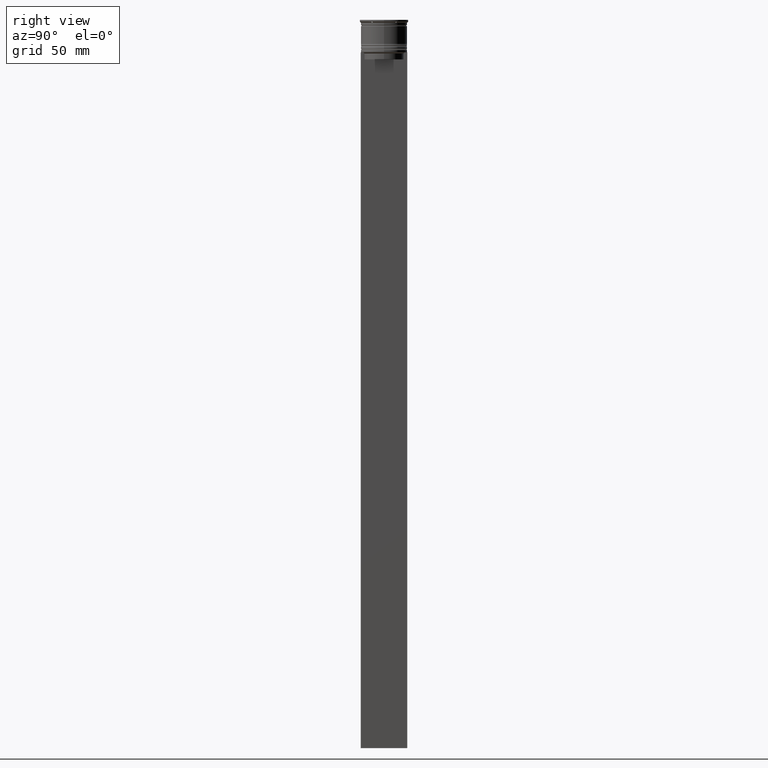
[diagram: clean part render]
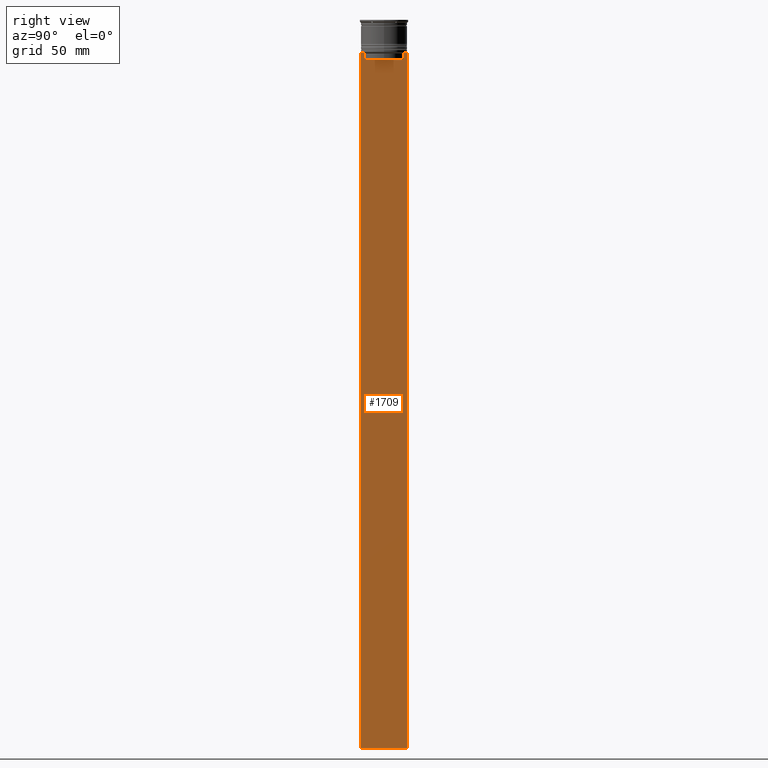
[diagram: same view with one face highlighted and labeled with its STEP entity id]
A machine part, right view. The second image highlights one B-rep face of the part: STEP entity #1709.
In plain terms, the highlighted planar face has unit normal (-1, 0, 0).
Its self-contained STEP definition (entity closure, byte-faithful):
#49 = CARTESIAN_POINT ( 'NONE',  ( 0.5000000000000000000, -10.00000000000000178, -14.00000000000000178 ) ) ;
#107 = DIRECTION ( 'NONE',  ( 0.000000000000000000, 0.000000000000000000, -1.000000000000000000 ) ) ;
#108 = VECTOR ( 'NONE', #2523, 1000.000000000000000 ) ;
#127 = B_SPLINE_CURVE_WITH_KNOTS ( 'NONE', 3,
 ( #407, #815, #832, #1891 ),
 .UNSPECIFIED., .F., .F.,
 ( 4, 4 ),
 ( 0.03898465126933130243, 0.03969388910599658260 ),
 .UNSPECIFIED. ) ;
#142 = VECTOR ( 'NONE', #1776, 1000.000000000000000 ) ;
#154 = CARTESIAN_POINT ( 'NONE',  ( 0.5000000000000000000, -8.385105843100616241, 0.000000000000000000 ) ) ;
#160 = VERTEX_POINT ( 'NONE', #1877 ) ;
#184 = CARTESIAN_POINT ( 'NONE',  ( 0.5000000000000000000, 9.999999999999998224, -314.0000000000000000 ) ) ;
#242 = CARTESIAN_POINT ( 'NONE',  ( 0.5000000000000000000, 8.400000000000003908, -17.00000000000000000 ) ) ;
#280 = LINE ( 'NONE', #1109, #1555 ) ;
#282 = EDGE_CURVE ( 'NONE', #2373, #308, #1839, .T. ) ;
#305 = LINE ( 'NONE', #1751, #945 ) ;
#308 = VERTEX_POINT ( 'NONE', #377 ) ;
#320 = EDGE_CURVE ( 'NONE', #160, #1660, #967, .T. ) ;
#345 = CARTESIAN_POINT ( 'NONE',  ( 0.5000000000000000000, 9.887365675446622149, -14.00000000000000178 ) ) ;
#348 = VERTEX_POINT ( 'NONE', #1202 ) ;
#376 = ORIENTED_EDGE ( 'NONE', *, *, #1933, .T. ) ;
#377 = CARTESIAN_POINT ( 'NONE',  ( 0.5000000000000000000, 8.385105843100616241, -17.00000000000000000 ) ) ;
#385 = CARTESIAN_POINT ( 'NONE',  ( 0.5000000000000000000, 8.885943956609230199, -14.00000000000000178 ) ) ;
#388 = EDGE_CURVE ( 'NONE', #1924, #2111, #2409, .T. ) ;
#407 = CARTESIAN_POINT ( 'NONE',  ( 0.5000000000000000000, -8.385105843100616241, -14.50000000000000000 ) ) ;
#468 = EDGE_CURVE ( 'NONE', #2465, #2092, #1222, .T. ) ;
#562 = ORIENTED_EDGE ( 'NONE', *, *, #320, .T. ) ;
#574 = CARTESIAN_POINT ( 'NONE',  ( 0.5000000000000000000, -8.885943956609230199, -14.00000000000000178 ) ) ;
#602 = LINE ( 'NONE', #2079, #1781 ) ;
#618 = DIRECTION ( 'NONE',  ( 0.000000000000000000, -1.000000000000000000, 0.000000000000000000 ) ) ;
#680 = VERTEX_POINT ( 'NONE', #184 ) ;
#815 = CARTESIAN_POINT ( 'NONE',  ( 0.5000000000000000000, -8.552060194457773434, -14.33334167772667023 ) ) ;
#832 = CARTESIAN_POINT ( 'NONE',  ( 0.5000000000000000000, -8.719005764482790966, -14.16667454151159689 ) ) ;
#845 = ORIENTED_EDGE ( 'NONE', *, *, #468, .T. ) ;
#857 = EDGE_CURVE ( 'NONE', #308, #1924, #1890, .T. ) ;
#945 = VECTOR ( 'NONE', #1128, 1000.000000000000000 ) ;
#956 = DIRECTION ( 'NONE',  ( -0.000000000000000000, -0.000000000000000000, 1.000000000000000000 ) ) ;
#967 = LINE ( 'NONE', #979, #142 ) ;
#979 = CARTESIAN_POINT ( 'NONE',  ( 0.5000000000000000000, -10.00000000000000178, -14.00000000000000178 ) ) ;
#1002 = CARTESIAN_POINT ( 'NONE',  ( 0.5000000000000000000, -10.00000000000000178, 6.024984394500783047 ) ) ;
#1008 = CARTESIAN_POINT ( 'NONE',  ( 0.5000000000000000000, 8.719005771582347464, -14.16667453442325453 ) ) ;
#1013 = CARTESIAN_POINT ( 'NONE',  ( 0.5000000000000000000, -10.00000000000000178, -14.00000000000000178 ) ) ;
#1014 = DIRECTION ( 'NONE',  ( 0.000000000000000000, 0.000000000000000000, 1.000000000000000000 ) ) ;
#1039 = VECTOR ( 'NONE', #2193, 1000.000000000000000 ) ;
#1044 = CARTESIAN_POINT ( 'NONE',  ( 0.5000000000000000000, 8.385105843100616241, -14.50000000000000000 ) ) ;
#1070 = EDGE_CURVE ( 'NONE', #2092, #2084, #2114, .T. ) ;
#1109 = CARTESIAN_POINT ( 'NONE',  ( 0.5000000000000000000, 9.999999999999998224, 6.024984394500783047 ) ) ;
#1128 = DIRECTION ( 'NONE',  ( 0.000000000000000000, -1.000000000000000000, 0.000000000000000000 ) ) ;
#1135 = LINE ( 'NONE', #2596, #1039 ) ;
#1202 = CARTESIAN_POINT ( 'NONE',  ( 0.5000000000000000000, -10.00000000000000178, -314.0000000000000000 ) ) ;
#1222 = LINE ( 'NONE', #1013, #1556 ) ;
#1232 = DIRECTION ( 'NONE',  ( 0.000000000000000000, 0.000000000000000000, -1.000000000000000000 ) ) ;
#1254 = ORIENTED_EDGE ( 'NONE', *, *, #2609, .T. ) ;
#1260 = DIRECTION ( 'NONE',  ( 0.000000000000000000, -1.000000000000000000, 0.000000000000000000 ) ) ;
#1325 = ORIENTED_EDGE ( 'NONE', *, *, #282, .T. ) ;
#1335 = AXIS2_PLACEMENT_3D ( 'NONE', #1002, #2061, #1014 ) ;
#1354 = CARTESIAN_POINT ( 'NONE',  ( 0.5000000000000000000, -8.385105843100616241, -17.00000000000000000 ) ) ;
#1441 = CARTESIAN_POINT ( 'NONE',  ( 0.5000000000000000000, -8.385105843100616241, -14.50000000000000000 ) ) ;
#1443 = VECTOR ( 'NONE', #618, 1000.000000000000000 ) ;
#1538 = ORIENTED_EDGE ( 'NONE', *, *, #2147, .T. ) ;
#1543 = ORIENTED_EDGE ( 'NONE', *, *, #1980, .F. ) ;
#1546 = CARTESIAN_POINT ( 'NONE',  ( 0.5000000000000000000, 9.999999999999998224, -14.00000000000000178 ) ) ;
#1555 = VECTOR ( 'NONE', #107, 1000.000000000000000 ) ;
#1556 = VECTOR ( 'NONE', #1260, 1000.000000000000000 ) ;
#1582 = CARTESIAN_POINT ( 'NONE',  ( 0.5000000000000000000, -10.00000000000000178, -14.00000000000000178 ) ) ;
#1591 = CARTESIAN_POINT ( 'NONE',  ( 0.5000000000000000000, 8.885943956609230199, -14.00000000000000178 ) ) ;
#1618 = DIRECTION ( 'NONE',  ( 0.000000000000000000, 0.000000000000000000, -1.000000000000000000 ) ) ;
#1619 = FACE_OUTER_BOUND ( 'NONE', #2570, .T. ) ;
#1640 = ORIENTED_EDGE ( 'NONE', *, *, #388, .T. ) ;
#1660 = VERTEX_POINT ( 'NONE', #1582 ) ;
#1709 = ADVANCED_FACE ( 'NONE', ( #1619 ), #2455, .F. ) ;
#1751 = CARTESIAN_POINT ( 'NONE',  ( 0.5000000000000000000, -10.00000000000000178, -14.00000000000000178 ) ) ;
#1764 = B_SPLINE_CURVE_WITH_KNOTS ( 'NONE', 3,
 ( #385, #1008, #1899, #1044 ),
 .UNSPECIFIED., .F., .F.,
 ( 4, 4 ),
 ( 0.01511546479386908018, 0.01582316445439079997 ),
 .UNSPECIFIED. ) ;
#1776 = DIRECTION ( 'NONE',  ( 0.000000000000000000, -1.000000000000000000, 0.000000000000000000 ) ) ;
#1781 = VECTOR ( 'NONE', #1232, 1000.000000000000000 ) ;
#1794 = ORIENTED_EDGE ( 'NONE', *, *, #2499, .T. ) ;
#1839 = LINE ( 'NONE', #2211, #2087 ) ;
#1877 = CARTESIAN_POINT ( 'NONE',  ( 0.5000000000000000000, -9.887365675446622149, -14.00000000000000178 ) ) ;
#1890 = LINE ( 'NONE', #242, #1443 ) ;
#1891 = CARTESIAN_POINT ( 'NONE',  ( 0.5000000000000000000, -8.885943956609230199, -14.00000000000000178 ) ) ;
#1899 = CARTESIAN_POINT ( 'NONE',  ( 0.5000000000000000000, 8.552060201981378285, -14.33334167021640582 ) ) ;
#1924 = VERTEX_POINT ( 'NONE', #1354 ) ;
#1933 = EDGE_CURVE ( 'NONE', #2383, #160, #305, .T. ) ;
#1946 = CARTESIAN_POINT ( 'NONE',  ( 0.5000000000000000000, 8.385105843100616241, -14.50000000000000000 ) ) ;
#1980 = EDGE_CURVE ( 'NONE', #2465, #680, #280, .T. ) ;
#1990 = ORIENTED_EDGE ( 'NONE', *, *, #857, .T. ) ;
#2015 = ORIENTED_EDGE ( 'NONE', *, *, #1070, .T. ) ;
#2061 = DIRECTION ( 'NONE',  ( -1.000000000000000000, 0.000000000000000000, 0.000000000000000000 ) ) ;
#2079 = CARTESIAN_POINT ( 'NONE',  ( 0.5000000000000000000, -10.00000000000000178, 6.024984394500783047 ) ) ;
#2084 = VERTEX_POINT ( 'NONE', #1591 ) ;
#2087 = VECTOR ( 'NONE', #1618, 1000.000000000000000 ) ;
#2092 = VERTEX_POINT ( 'NONE', #345 ) ;
#2111 = VERTEX_POINT ( 'NONE', #1441 ) ;
#2114 = LINE ( 'NONE', #49, #108 ) ;
#2146 = ORIENTED_EDGE ( 'NONE', *, *, #2216, .T. ) ;
#2147 = EDGE_CURVE ( 'NONE', #2111, #2383, #127, .T. ) ;
#2193 = DIRECTION ( 'NONE',  ( 0.000000000000000000, 1.000000000000000000, 0.000000000000000000 ) ) ;
#2211 = CARTESIAN_POINT ( 'NONE',  ( 0.5000000000000000000, 8.385105843100616241, 0.000000000000000000 ) ) ;
#2216 = EDGE_CURVE ( 'NONE', #1660, #348, #602, .T. ) ;
#2373 = VERTEX_POINT ( 'NONE', #1946 ) ;
#2383 = VERTEX_POINT ( 'NONE', #574 ) ;
#2409 = LINE ( 'NONE', #154, #2520 ) ;
#2455 = PLANE ( 'NONE',  #1335 ) ;
#2465 = VERTEX_POINT ( 'NONE', #1546 ) ;
#2499 = EDGE_CURVE ( 'NONE', #348, #680, #1135, .T. ) ;
#2520 = VECTOR ( 'NONE', #956, 1000.000000000000000 ) ;
#2523 = DIRECTION ( 'NONE',  ( 0.000000000000000000, -1.000000000000000000, 0.000000000000000000 ) ) ;
#2570 = EDGE_LOOP ( 'NONE', ( #2015, #1254, #1325, #1990, #1640, #1538, #376, #562, #2146, #1794, #1543, #845 ) ) ;
#2596 = CARTESIAN_POINT ( 'NONE',  ( 0.5000000000000000000, -10.00000000000000178, -314.0000000000000000 ) ) ;
#2609 = EDGE_CURVE ( 'NONE', #2084, #2373, #1764, .T. ) ;